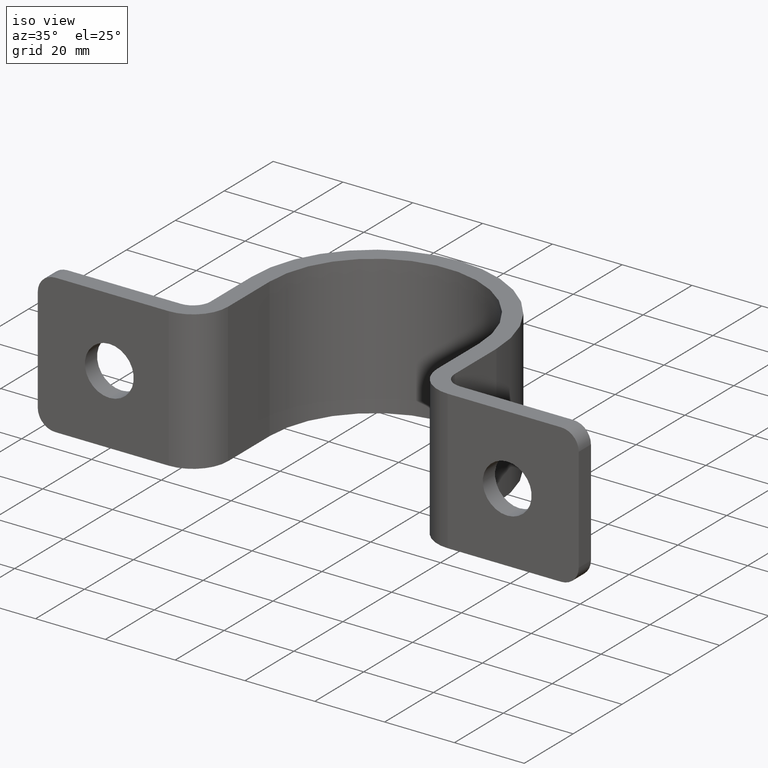
[diagram: clean part render]
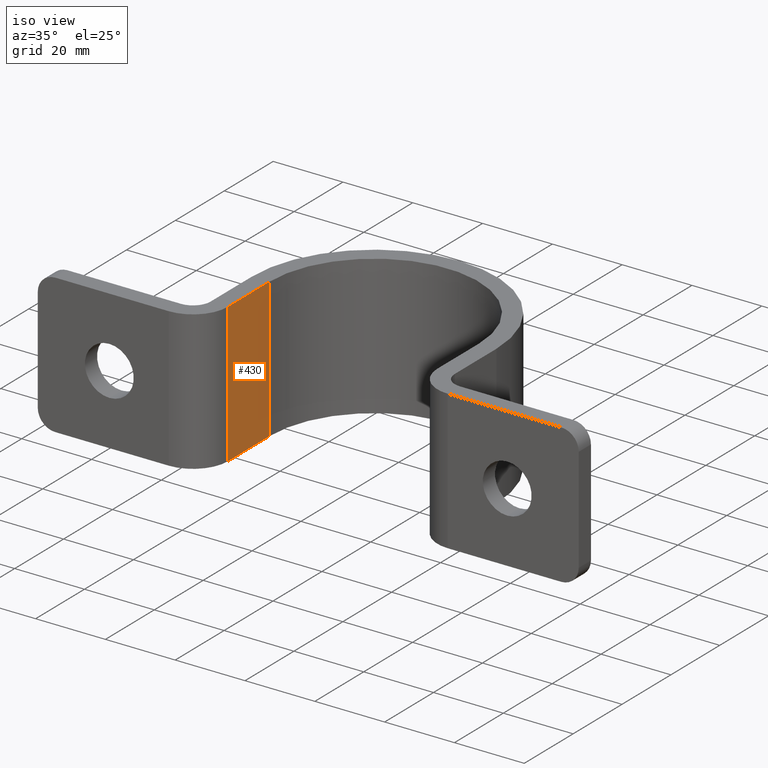
[diagram: same view with one face highlighted and labeled with its STEP entity id]
A machine part, iso view. The second image highlights one B-rep face of the part: STEP entity #430.
In plain terms, the highlighted planar face has unit normal (-1, 0, 0).
Its self-contained STEP definition (entity closure, byte-faithful):
#4 = EDGE_CURVE ( 'NONE', #734, #502, #496, .T. ) ;
#22 = ORIENTED_EDGE ( 'NONE', *, *, #416, .F. ) ;
#25 = CARTESIAN_POINT ( 'NONE',  ( -30.00000000000000000, 30.00000000000000000, -20.00000000000000000 ) ) ;
#85 = DIRECTION ( 'NONE',  ( 0.000000000000000000, 1.000000000000000000, 0.000000000000000000 ) ) ;
#93 = CARTESIAN_POINT ( 'NONE',  ( -30.00000000000000000, 12.99999999999998046, -20.00000000000000000 ) ) ;
#120 = VECTOR ( 'NONE', #85, 1000.000000000000000 ) ;
#121 = DIRECTION ( 'NONE',  ( 0.000000000000000000, 1.000000000000000000, 0.000000000000000000 ) ) ;
#124 = ORIENTED_EDGE ( 'NONE', *, *, #4, .T. ) ;
#178 = CARTESIAN_POINT ( 'NONE',  ( -30.00000000000000000, 12.99999999999998046, 20.00000000000000000 ) ) ;
#195 = CARTESIAN_POINT ( 'NONE',  ( -30.00000000000000000, 2.999999999999981348, -20.00000000000000000 ) ) ;
#207 = DIRECTION ( 'NONE',  ( -1.000000000000000000, 0.000000000000000000, 0.000000000000000000 ) ) ;
#244 = CARTESIAN_POINT ( 'NONE',  ( -30.00000000000000000, 2.999999999999981348, 20.00000000000000000 ) ) ;
#290 = LINE ( 'NONE', #634, #906 ) ;
#316 = DIRECTION ( 'NONE',  ( -0.000000000000000000, -0.000000000000000000, -1.000000000000000000 ) ) ;
#379 = PLANE ( 'NONE',  #532 ) ;
#416 = EDGE_CURVE ( 'NONE', #487, #797, #290, .T. ) ;
#430 = ADVANCED_FACE ( 'NONE', ( #986 ), #379, .F. ) ;
#487 = VERTEX_POINT ( 'NONE', #514 ) ;
#496 = LINE ( 'NONE', #1009, #525 ) ;
#498 = ORIENTED_EDGE ( 'NONE', *, *, #766, .T. ) ;
#502 = VERTEX_POINT ( 'NONE', #93 ) ;
#507 = VECTOR ( 'NONE', #121, 1000.000000000000000 ) ;
#514 = CARTESIAN_POINT ( 'NONE',  ( -30.00000000000000000, 30.00000000000000000, 20.00000000000000000 ) ) ;
#525 = VECTOR ( 'NONE', #316, 1000.000000000000000 ) ;
#532 = AXIS2_PLACEMENT_3D ( 'NONE', #739, #207, #558 ) ;
#558 = DIRECTION ( 'NONE',  ( 0.000000000000000000, 0.000000000000000000, 1.000000000000000000 ) ) ;
#634 = CARTESIAN_POINT ( 'NONE',  ( -30.00000000000000000, 30.00000000000000000, 20.00000000000000000 ) ) ;
#734 = VERTEX_POINT ( 'NONE', #178 ) ;
#739 = CARTESIAN_POINT ( 'NONE',  ( -30.00000000000000000, 2.999999999999981348, 20.00000000000000000 ) ) ;
#766 = EDGE_CURVE ( 'NONE', #502, #797, #812, .T. ) ;
#797 = VERTEX_POINT ( 'NONE', #25 ) ;
#812 = LINE ( 'NONE', #195, #507 ) ;
#817 = DIRECTION ( 'NONE',  ( -0.000000000000000000, -0.000000000000000000, -1.000000000000000000 ) ) ;
#864 = LINE ( 'NONE', #244, #120 ) ;
#906 = VECTOR ( 'NONE', #817, 1000.000000000000000 ) ;
#945 = EDGE_LOOP ( 'NONE', ( #498, #22, #1008, #124 ) ) ;
#986 = FACE_OUTER_BOUND ( 'NONE', #945, .T. ) ;
#1008 = ORIENTED_EDGE ( 'NONE', *, *, #1022, .F. ) ;
#1009 = CARTESIAN_POINT ( 'NONE',  ( -30.00000000000000000, 12.99999999999998046, 20.00000000000000000 ) ) ;
#1022 = EDGE_CURVE ( 'NONE', #734, #487, #864, .T. ) ;